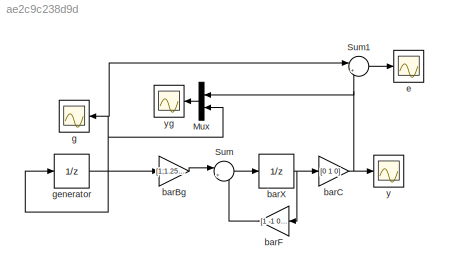
MODEL slx_ae2c9c238d9d
KIND model
CONFIG AbsTol = auto
CONFIG EnableMultiTasking = off
CONFIG FixedStep = 1
CONFIG MaxStep = auto
CONFIG MinStep = auto
CONFIG RelTol = 1e-3
CONFIG SampleTimeConstraint = Unconstrained
CONFIG SolverName = FixedStepAuto
CONFIG StartTime = 0.0
CONFIG StopTime = 10.0
BLOCK [Mux] Mux
  DisplayOption = bar
  Inputs = 2
  NameLocation = top
BLOCK [Sum] Sum
  Inputs = |++
BLOCK [Sum] Sum1
  Inputs = |+-
BLOCK [Gain] barBg
  Gain = [1;1.25;2.5]
  Multiplication = Matrix(K*u)
BLOCK [Gain] barC
  Gain = [0 1 0]
  Multiplication = Matrix(K*u)
BLOCK [Gain] barF
  Gain = [1 -1 0;0.5 -0.25 0.125;1 -2.5 -0.75]
  Multiplication = Matrix(K*u)
BLOCK [UnitDelay] barX
  HasFrameUpgradeWarning = on
  InitialCondition = [0;1;0]
  SampleTime = -1
BLOCK [Scope] e
  Floating = off
  NumInputPorts = 1
  ScopeSpecificationString = Simulink.scopes.TimeScopeBlockCfg('CurrentConfiguration', extmgr.ConfigurationSet(extmgr.Configuration('Core','General UI',true,'FigureColor',[1 1 1]),extmgr.Configuration('Core','Source UI',true),extmgr.Configuration('Sources','WiredSimulink',true,'DataLoggingVariableName','ScopeData2'),extmgr.Configuration('Visuals','Time Domain',true,'SerializedDisplays',{struct('MinYLimReal','-1.085','MaxYLimR...<+1576ch>
BLOCK [Scope] g
  Floating = off
  NameLocation = top
  NumInputPorts = 1
  ScopeSpecificationString = Simulink.scopes.TimeScopeBlockCfg('CurrentConfiguration', extmgr.ConfigurationSet(extmgr.Configuration('Core','General UI',true,'FigureColor',[1 1 1]),extmgr.Configuration('Core','Source UI',true),extmgr.Configuration('Sources','WiredSimulink',true),extmgr.Configuration('Visuals','Time Domain',true,'SerializedDisplays',{struct('MinYLimReal','1.12','MaxYLimReal','3.12','YLabelReal','g(k)','MinYLimM...<+2303ch>
BLOCK [UnitDelay] generator
  HasFrameUpgradeWarning = on
  InitialCondition = 2.12
  SampleTime = -1
BLOCK [Scope] y
  Floating = off
  NumInputPorts = 1
  ScopeSpecificationString = Simulink.scopes.TimeScopeBlockCfg('CurrentConfiguration', extmgr.ConfigurationSet(extmgr.Configuration('Core','General UI',true,'FigureColor',[1 1 1]),extmgr.Configuration('Core','Source UI',true),extmgr.Configuration('Sources','WiredSimulink',true,'DataLoggingVariableName','ScopeData1'),extmgr.Configuration('Visuals','Time Domain',true,'SerializedDisplays',{struct('MinYLimReal','-0.20033','MaxYLi...<+1545ch>
BLOCK [Scope] yg
  Floating = off
  NameLocation = top
  NumInputPorts = 1
  ScopeSpecificationString = Simulink.scopes.TimeScopeBlockCfg('CurrentConfiguration', extmgr.ConfigurationSet(extmgr.Configuration('Core','General UI',true,'FigureColor',[1 1 1]),extmgr.Configuration('Core','Source UI',true),extmgr.Configuration('Sources','WiredSimulink',true,'DataLoggingVariableName','ScopeData3'),extmgr.Configuration('Visuals','Time Domain',true,'SerializedDisplays',{struct('MinYLimReal','0.755','MaxYLimRe...<+1742ch>
LINE Mux:1 -> yg:1
LINE Sum1:1 -> e:1
LINE Sum:1 -> barX:1
LINE barBg:1 -> Sum:1
NET barC:1 -> Mux:1, Sum1:2, y:1
LINE barF:1 -> Sum:2
NET barX:1 -> barC:1, barF:1
NET generator:1 -> Mux:2, Sum1:1, barBg:1, g:1, generator:1
note: NET lines group one-source signal fan-out (src -> all destinations, sorted); 1:1 wires keep LINE
